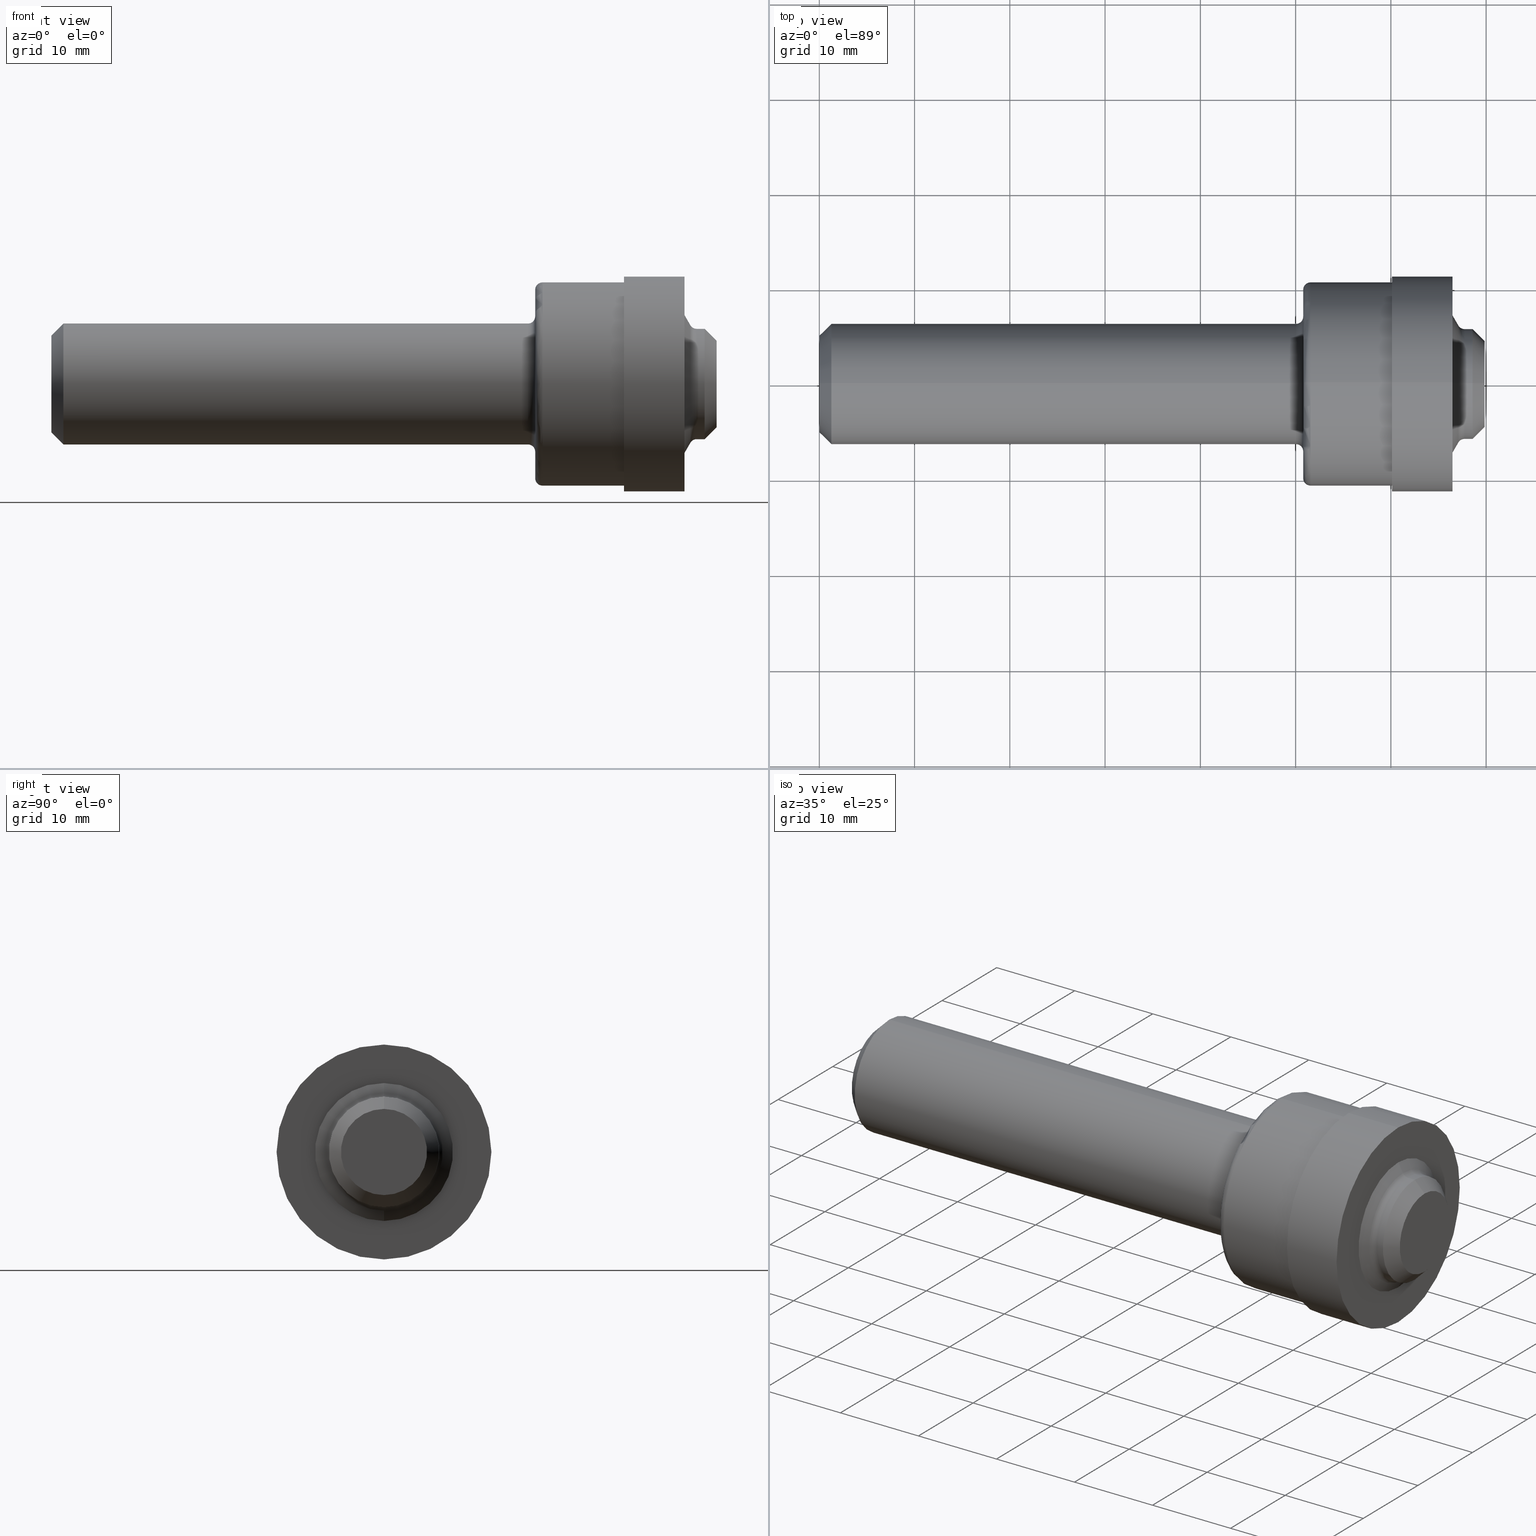
[diagram: canonical four-view strip — front | top / right | iso, engineering-drawing reading convention]
A machine part, canonical four-view strip (front | top / right | iso — engineering-drawing reading convention). The complete STEP part file that produces these views, byte-faithful:
ISO-10303-21;
HEADER;
FILE_DESCRIPTION (( 'STEP AP214' ),
    '1' );
FILE_NAME ('AS5202-04X.STEP',
    '2023-11-10T18:00:17',
    ( '' ),
    ( '' ),
    'SwSTEP 2.0',
    'SolidWorks 2022',
    '' );
FILE_SCHEMA (( 'AUTOMOTIVE_DESIGN' ));
ENDSEC;

DATA;
#1 = CARTESIAN_POINT ( 'NONE',  ( 2.000000000000000000, 3.427174067413867695E-17, -0.2798499999999999877 ) ) ;
#2 = FACE_OUTER_BOUND ( 'NONE', #418, .T. ) ;
#3 = CARTESIAN_POINT ( 'NONE',  ( 2.750000000000000000, 0.000000000000000000, 0.000000000000000000 ) ) ;
#4 = PRODUCT_RELATED_PRODUCT_CATEGORY ( 'part', '', ( #489 ) ) ;
#5 = CARTESIAN_POINT ( 'NONE',  ( 2.666594388123388448, 0.000000000000000000, 0.000000000000000000 ) ) ;
#6 = DIRECTION ( 'NONE',  ( 0.000000000000000000, 0.000000000000000000, 1.000000000000000000 ) ) ;
#7 = ORIENTED_EDGE ( 'NONE', *, *, #551, .F. ) ;
#8 = CONICAL_SURFACE ( 'NONE', #91, 0.1781000000000000638, 0.7853981633974500554 ) ;
#9 = DIRECTION ( 'NONE',  ( 0.000000000000000000, 0.000000000000000000, 1.000000000000000000 ) ) ;
#10 = EDGE_CURVE ( 'NONE', #492, #130, #298, .T. ) ;
#11 =( NAMED_UNIT ( * ) SI_UNIT ( $, .STERADIAN. ) SOLID_ANGLE_UNIT ( ) );
#12 = CARTESIAN_POINT ( 'NONE',  ( 2.616999999999999993, 0.4440000000000000058, 0.000000000000000000 ) ) ;
#13 = DIRECTION ( 'NONE',  ( 1.000000000000000000, 0.000000000000000000, 0.000000000000000000 ) ) ;
#14 = VERTEX_POINT ( 'NONE', #524 ) ;
#15 = DIRECTION ( 'NONE',  ( -0.000000000000000000, 0.000000000000000000, 1.000000000000000000 ) ) ;
#16 = ORIENTED_EDGE ( 'NONE', *, *, #266, .T. ) ;
#17 = PRESENTATION_LAYER_ASSIGNMENT (  '', '', ( #132 ) ) ;
#18 = CARTESIAN_POINT ( 'NONE',  ( 2.666594388123388448, 0.000000000000000000, 0.2280999999999997474 ) ) ;
#19 = VERTEX_POINT ( 'NONE', #40 ) ;
#20 = ADVANCED_FACE ( 'NONE', ( #247 ), #47, .T. ) ;
#21 = CARTESIAN_POINT ( 'NONE',  ( 0.05000000000000000278, 0.000000000000000000, 0.000000000000000000 ) ) ;
#22 = ORIENTED_EDGE ( 'NONE', *, *, #404, .F. ) ;
#23 = DIRECTION ( 'NONE',  ( -1.000000000000000000, -0.000000000000000000, -0.000000000000000000 ) ) ;
#24 = ORIENTED_EDGE ( 'NONE', *, *, #185, .F. ) ;
#25 = ORIENTED_EDGE ( 'NONE', *, *, #157, .F. ) ;
#26 = ORIENTED_EDGE ( 'NONE', *, *, #580, .F. ) ;
#27 = AXIS2_PLACEMENT_3D ( 'NONE', #533, #148, #362 ) ;
#28 = EDGE_LOOP ( 'NONE', ( #26, #571, #227, #308 ) ) ;
#29 = EDGE_CURVE ( 'NONE', #380, #313, #175, .T. ) ;
#30 = CARTESIAN_POINT ( 'NONE',  ( 0.000000000000000000, 0.000000000000000000, -0.1998500000000001942 ) ) ;
#31 = ORIENTED_EDGE ( 'NONE', *, *, #246, .T. ) ;
#32 = EDGE_CURVE ( 'NONE', #14, #497, #692, .T. ) ;
#33 = DIRECTION ( 'NONE',  ( -1.000000000000000000, -0.000000000000000000, -0.000000000000000000 ) ) ;
#34 = ORIENTED_EDGE ( 'NONE', *, *, #370, .T. ) ;
#35 = APPLICATION_PROTOCOL_DEFINITION ( 'draft international standard', 'automotive_design', 1998, #650 ) ;
#36 = ADVANCED_FACE ( 'NONE', ( #2 ), #300, .T. ) ;
#37 = CIRCLE ( 'NONE', #216, 0.2849999999999999756 ) ;
#38 = ORIENTED_EDGE ( 'NONE', *, *, #202, .T. ) ;
#39 = DIRECTION ( 'NONE',  ( -1.000000000000000000, -0.000000000000000000, -0.000000000000000000 ) ) ;
#40 = CARTESIAN_POINT ( 'NONE',  ( 2.616999999999999993, 3.490243377569956308E-17, -0.2849999999999999756 ) ) ;
#41 = DIRECTION ( 'NONE',  ( -0.000000000000000000, 1.000000000000000000, 1.224646799147353207E-16 ) ) ;
#42 = DIRECTION ( 'NONE',  ( 0.000000000000000000, 0.000000000000000000, 1.000000000000000000 ) ) ;
#43 = DIRECTION ( 'NONE',  ( -1.000000000000000000, -0.000000000000000000, -0.000000000000000000 ) ) ;
#44 = EDGE_LOOP ( 'NONE', ( #278, #558 ) ) ;
#45 = CARTESIAN_POINT ( 'NONE',  ( 2.616999999999999993, 5.437431788214248526E-17, -0.4440000000000000058 ) ) ;
#46 = CARTESIAN_POINT ( 'NONE',  ( 2.029999999999999805, 0.000000000000000000, 0.000000000000000000 ) ) ;
#47 = CONICAL_SURFACE ( 'NONE', #518, 0.2425999999999998713, 1.047197551196612064 ) ;
#48 = VECTOR ( 'NONE', #224, 39.37007874015748143 ) ;
#49 = LINE ( 'NONE', #586, #577 ) ;
#50 = DIRECTION ( 'NONE',  ( 0.000000000000000000, 0.000000000000000000, 1.000000000000000000 ) ) ;
#51 = DIRECTION ( 'NONE',  ( 0.000000000000000000, 0.000000000000000000, -1.000000000000000000 ) ) ;
#52 = DIRECTION ( 'NONE',  ( 0.000000000000000000, 0.000000000000000000, 1.000000000000000000 ) ) ;
#53 = CARTESIAN_POINT ( 'NONE',  ( 2.700000000000000178, 0.000000000000000000, 0.000000000000000000 ) ) ;
#54 = DIRECTION ( 'NONE',  ( 0.000000000000000000, 0.000000000000000000, 1.000000000000000000 ) ) ;
#55 = ADVANCED_FACE ( 'NONE', ( #258 ), #90, .F. ) ;
#56 = FACE_BOUND ( 'NONE', #660, .T. ) ;
#57 = AXIS2_PLACEMENT_3D ( 'NONE', #565, #459, #232 ) ;
#58 = DIRECTION ( 'NONE',  ( -1.000000000000000000, -0.000000000000000000, -0.000000000000000000 ) ) ;
#59 = ADVANCED_BREP_SHAPE_REPRESENTATION ( 'AS5202-04X', ( #64, #542 ), #168 ) ;
#60 = DIRECTION ( 'NONE',  ( 0.000000000000000000, 0.000000000000000000, -1.000000000000000000 ) ) ;
#61 = LINE ( 'NONE', #271, #402 ) ;
#62 = ADVANCED_FACE ( 'NONE', ( #645 ), #211, .T. ) ;
#63 = DIRECTION ( 'NONE',  ( -1.000000000000000000, -0.000000000000000000, -0.000000000000000000 ) ) ;
#64 = MANIFOLD_SOLID_BREP ( 'Body', #610 ) ;
#65 = DIRECTION ( 'NONE',  ( 0.000000000000000000, 0.000000000000000000, 1.000000000000000000 ) ) ;
#66 = ORIENTED_EDGE ( 'NONE', *, *, #172, .T. ) ;
#67 = AXIS2_PLACEMENT_3D ( 'NONE', #510, #681, #669 ) ;
#68 = PLANE ( 'NONE',  #448 ) ;
#69 = CIRCLE ( 'NONE', #549, 0.2425999999999998713 ) ;
#70 = ORIENTED_EDGE ( 'NONE', *, *, #294, .T. ) ;
#71 = CARTESIAN_POINT ( 'NONE',  ( 2.750000000000000000, 0.000000000000000000, 0.1781000000000000638 ) ) ;
#72 = ORIENTED_EDGE ( 'NONE', *, *, #399, .F. ) ;
#73 = CARTESIAN_POINT ( 'NONE',  ( 1.969999999999999973, 0.000000000000000000, 0.000000000000000000 ) ) ;
#74 = DIRECTION ( 'NONE',  ( -1.000000000000000000, -0.000000000000000000, -0.000000000000000000 ) ) ;
#75 = EDGE_LOOP ( 'NONE', ( #206, #144, #507, #25 ) ) ;
#76 = ORIENTED_EDGE ( 'NONE', *, *, #212, .T. ) ;
#77 = ADVANCED_FACE ( 'NONE', ( #105 ), #104, .F. ) ;
#78 = CARTESIAN_POINT ( 'NONE',  ( 2.616999999999999993, 0.000000000000000000, 0.4440000000000000058 ) ) ;
#79 = ORIENTED_EDGE ( 'NONE', *, *, #269, .F. ) ;
#80 =( GEOMETRIC_REPRESENTATION_CONTEXT ( 3 ) GLOBAL_UNCERTAINTY_ASSIGNED_CONTEXT ( ( #434 ) ) GLOBAL_UNIT_ASSIGNED_CONTEXT ( ( #431, #150, #11 ) ) REPRESENTATION_CONTEXT ( 'NONE', 'WORKASPACE' ) );
#81 = AXIS2_PLACEMENT_3D ( 'NONE', #655, #331, #54 ) ;
#82 = ORIENTED_EDGE ( 'NONE', *, *, #654, .T. ) ;
#83 = DIMENSIONAL_EXPONENTS ( 1.000000000000000000, 0.000000000000000000, 0.000000000000000000, 0.000000000000000000, 0.000000000000000000, 0.000000000000000000, 0.000000000000000000 ) ;
#84 = ORIENTED_EDGE ( 'NONE', *, *, #554, .F. ) ;
#85 =( CONVERSION_BASED_UNIT ( 'INCH', #523 ) LENGTH_UNIT ( ) NAMED_UNIT ( #242 ) );
#86 = EDGE_CURVE ( 'NONE', #585, #352, #439, .T. ) ;
#87 = DIRECTION ( 'NONE',  ( -1.000000000000000000, -0.000000000000000000, -0.000000000000000000 ) ) ;
#88 = ORIENTED_EDGE ( 'NONE', *, *, #370, .F. ) ;
#89 = SHAPE_DEFINITION_REPRESENTATION ( #267, #59 ) ;
#90 = TOROIDAL_SURFACE ( 'NONE', #316, 0.2570999999999999952, 0.02900000000000022699 ) ;
#91 = AXIS2_PLACEMENT_3D ( 'NONE', #3, #572, #317 ) ;
#92 = CARTESIAN_POINT ( 'NONE',  ( 2.641479651413639385, 0.000000000000000000, 0.000000000000000000 ) ) ;
#93 = VECTOR ( 'NONE', #573, 39.37007874015748143 ) ;
#94 = DIRECTION ( 'NONE',  ( -1.000000000000000000, -0.000000000000000000, -0.000000000000000000 ) ) ;
#95 = CARTESIAN_POINT ( 'NONE',  ( 2.750000000000000000, 0.000000000000000000, 0.000000000000000000 ) ) ;
#96 =( NAMED_UNIT ( * ) PLANE_ANGLE_UNIT ( ) SI_UNIT ( $, .RADIAN. ) );
#97 = DIRECTION ( 'NONE',  ( 0.000000000000000000, 0.000000000000000000, 1.000000000000000000 ) ) ;
#98 = ORIENTED_EDGE ( 'NONE', *, *, #534, .F. ) ;
#99 = DIRECTION ( 'NONE',  ( 0.000000000000000000, -1.224646799147354933E-16, 1.000000000000000000 ) ) ;
#100 = CARTESIAN_POINT ( 'NONE',  ( 0.000000000000000000, 0.000000000000000000, 0.2498499999999999888 ) ) ;
#101 = ADVANCED_FACE ( 'NONE', ( #595, #56 ), #268, .F. ) ;
#102 = ORIENTED_EDGE ( 'NONE', *, *, #315, .T. ) ;
#103 = FACE_OUTER_BOUND ( 'NONE', #552, .T. ) ;
#104 = TOROIDAL_SURFACE ( 'NONE', #493, 0.2798499999999999877, 0.02999999999999997113 ) ;
#105 = FACE_OUTER_BOUND ( 'NONE', #633, .T. ) ;
#106 = TOROIDAL_SURFACE ( 'NONE', #495, 0.3899999999999999578, 0.02999999999999998848 ) ;
#107 = DIRECTION ( 'NONE',  ( -1.000000000000000000, -0.000000000000000000, -0.000000000000000000 ) ) ;
#108 =( LENGTH_UNIT ( ) NAMED_UNIT ( * ) SI_UNIT ( $, .METRE. ) );
#109 = ADVANCED_FACE ( 'NONE', ( #114 ), #356, .T. ) ;
#110 = DIRECTION ( 'NONE',  ( 0.000000000000000000, 0.000000000000000000, 1.000000000000000000 ) ) ;
#111 = LINE ( 'NONE', #371, #48 ) ;
#112 = CIRCLE ( 'NONE', #505, 0.4440000000000000058 ) ;
#113 = FACE_OUTER_BOUND ( 'NONE', #147, .T. ) ;
#114 = FACE_OUTER_BOUND ( 'NONE', #611, .T. ) ;
#115 = ORIENTED_EDGE ( 'NONE', *, *, #266, .F. ) ;
#116 = VECTOR ( 'NONE', #503, 39.37007874015748143 ) ;
#117 = CARTESIAN_POINT ( 'NONE',  ( 0.05000000000000000278, 0.000000000000000000, 0.000000000000000000 ) ) ;
#118 = ORIENTED_EDGE ( 'NONE', *, *, #512, .T. ) ;
#119 = DIRECTION ( 'NONE',  ( 0.000000000000000000, 0.000000000000000000, 1.000000000000000000 ) ) ;
#120 = CIRCLE ( 'NONE', #517, 0.4199999999999998734 ) ;
#121 = EDGE_LOOP ( 'NONE', ( #124, #475, #329, #343 ) ) ;
#122 = VECTOR ( 'NONE', #342, 39.37007874015748854 ) ;
#123 = AXIS2_PLACEMENT_3D ( 'NONE', #643, #419, #204 ) ;
#124 = ORIENTED_EDGE ( 'NONE', *, *, #185, .T. ) ;
#125 = ORIENTED_EDGE ( 'NONE', *, *, #10, .T. ) ;
#126 = DIRECTION ( 'NONE',  ( 0.000000000000000000, 0.000000000000000000, 1.000000000000000000 ) ) ;
#127 = ADVANCED_FACE ( 'NONE', ( #265 ), #166, .T. ) ;
#128 = CARTESIAN_POINT ( 'NONE',  ( 2.366999999999999993, 0.000000000000000000, 0.000000000000000000 ) ) ;
#129 =( NAMED_UNIT ( * ) PLANE_ANGLE_UNIT ( ) SI_UNIT ( $, .RADIAN. ) );
#130 = VERTEX_POINT ( 'NONE', #607 ) ;
#131 = CARTESIAN_POINT ( 'NONE',  ( 0.000000000000000000, 0.000000000000000000, 0.000000000000000000 ) ) ;
#132 = STYLED_ITEM ( 'NONE', ( #597 ), #64 ) ;
#133 = AXIS2_PLACEMENT_3D ( 'NONE', #327, #13, #60 ) ;
#134 = DIRECTION ( 'NONE',  ( 0.000000000000000000, -1.224646799147352221E-16, 1.000000000000000000 ) ) ;
#135 = EDGE_LOOP ( 'NONE', ( #511, #339 ) ) ;
#136 = APPLICATION_PROTOCOL_DEFINITION ( 'draft international standard', 'automotive_design', 1998, #213 ) ;
#137 = CARTESIAN_POINT ( 'NONE',  ( 0.000000000000000000, 3.059780027669661931E-17, -0.2498499999999999888 ) ) ;
#138 = VERTEX_POINT ( 'NONE', #598 ) ;
#139 = PLANE ( 'NONE',  #201 ) ;
#140 = ORIENTED_EDGE ( 'NONE', *, *, #420, .F. ) ;
#141 = CARTESIAN_POINT ( 'NONE',  ( 0.000000000000000000, 0.000000000000000000, 0.000000000000000000 ) ) ;
#142 = SURFACE_STYLE_USAGE ( .BOTH. , #567 ) ;
#143 = CARTESIAN_POINT ( 'NONE',  ( 2.616999999999999993, 0.000000000000000000, 0.2849999999999999756 ) ) ;
#144 = ORIENTED_EDGE ( 'NONE', *, *, #580, .T. ) ;
#145 = LINE ( 'NONE', #303, #93 ) ;
#146 = SURFACE_STYLE_FILL_AREA ( #208 ) ;
#147 = EDGE_LOOP ( 'NONE', ( #332, #390 ) ) ;
#148 = DIRECTION ( 'NONE',  ( -1.000000000000000000, -0.000000000000000000, -0.000000000000000000 ) ) ;
#149 = DIRECTION ( 'NONE',  ( -1.000000000000000000, -0.000000000000000000, -0.000000000000000000 ) ) ;
#150 =( NAMED_UNIT ( * ) PLANE_ANGLE_UNIT ( ) SI_UNIT ( $, .RADIAN. ) );
#151 = CARTESIAN_POINT ( 'NONE',  ( 2.616999999999999993, 0.000000000000000000, 0.000000000000000000 ) ) ;
#152 = ORIENTED_EDGE ( 'NONE', *, *, #29, .T. ) ;
#153 = EDGE_CURVE ( 'NONE', #604, #623, #322, .T. ) ;
#154 = CIRCLE ( 'NONE', #464, 0.4199999999999999845 ) ;
#155 = VECTOR ( 'NONE', #417, 39.37007874015748143 ) ;
#156 = CARTESIAN_POINT ( 'NONE',  ( 2.616999999999999993, 0.000000000000000000, 0.000000000000000000 ) ) ;
#157 = EDGE_CURVE ( 'NONE', #664, #609, #273, .T. ) ;
#158 = DIRECTION ( 'NONE',  ( -1.000000000000000000, -0.000000000000000000, -0.000000000000000000 ) ) ;
#159 = FACE_OUTER_BOUND ( 'NONE', #121, .T. ) ;
#160 = SURFACE_STYLE_USAGE ( .BOTH. , #435 ) ;
#161 = CARTESIAN_POINT ( 'NONE',  ( 2.641479651413639385, 2.970993134731476863E-17, -0.2425999999999998713 ) ) ;
#162 = CIRCLE ( 'NONE', #656, 0.4440000000000000058 ) ;
#163 = CARTESIAN_POINT ( 'NONE',  ( 2.000000000000000000, 0.000000000000000000, 0.3899999999999999578 ) ) ;
#164 = ORIENTED_EDGE ( 'NONE', *, *, #277, .T. ) ;
#165 = EDGE_CURVE ( 'NONE', #628, #581, #162, .T. ) ;
#166 = CYLINDRICAL_SURFACE ( 'NONE', #587, 0.4199999999999998734 ) ;
#167 = DIRECTION ( 'NONE',  ( 0.000000000000000000, -1.000000000000000000, 0.000000000000000000 ) ) ;
#168 =( GEOMETRIC_REPRESENTATION_CONTEXT ( 3 ) GLOBAL_UNCERTAINTY_ASSIGNED_CONTEXT ( ( #592 ) ) GLOBAL_UNIT_ASSIGNED_CONTEXT ( ( #171, #129, #283 ) ) REPRESENTATION_CONTEXT ( 'NONE', 'WORKASPACE' ) );
#169 = DIRECTION ( 'NONE',  ( 0.000000000000000000, 0.000000000000000000, -1.000000000000000000 ) ) ;
#170 = ORIENTED_EDGE ( 'NONE', *, *, #364, .T. ) ;
#171 =( CONVERSION_BASED_UNIT ( 'INCH', #563 ) LENGTH_UNIT ( ) NAMED_UNIT ( #83 ) );
#172 = EDGE_CURVE ( 'NONE', #182, #576, #346, .T. ) ;
#173 = VECTOR ( 'NONE', #149, 39.37007874015748143 ) ;
#174 = CARTESIAN_POINT ( 'NONE',  ( 0.000000000000000000, 0.000000000000000000, 0.4440000000000000058 ) ) ;
#175 = CIRCLE ( 'NONE', #252, 0.1781000000000000638 ) ;
#176 = ORIENTED_EDGE ( 'NONE', *, *, #684, .T. ) ;
#177 = CIRCLE ( 'NONE', #538, 0.02999999999999995379 ) ;
#178 = EDGE_CURVE ( 'NONE', #384, #514, #657, .T. ) ;
#179 = DIRECTION ( 'NONE',  ( 0.000000000000000000, 0.000000000000000000, -1.000000000000000000 ) ) ;
#180 = CARTESIAN_POINT ( 'NONE',  ( 1.969999999999999973, 3.243477047541764505E-17, -0.2498499999999999888 ) ) ;
#181 = ORIENTED_EDGE ( 'NONE', *, *, #528, .T. ) ;
#182 = VERTEX_POINT ( 'NONE', #163 ) ;
#183 = CARTESIAN_POINT ( 'NONE',  ( 0.000000000000000000, 0.000000000000000000, 0.000000000000000000 ) ) ;
#184 = CARTESIAN_POINT ( 'NONE',  ( 0.000000000000000000, 0.000000000000000000, 0.2280999999999998862 ) ) ;
#185 = EDGE_CURVE ( 'NONE', #352, #585, #375, .T. ) ;
#186 = AXIS2_PLACEMENT_3D ( 'NONE', #222, #458, #614 ) ;
#187 = DIRECTION ( 'NONE',  ( -1.000000000000000000, -0.000000000000000000, -0.000000000000000000 ) ) ;
#188 = ORIENTED_EDGE ( 'NONE', *, *, #86, .F. ) ;
#189 = AXIS2_PLACEMENT_3D ( 'NONE', #117, #662, #65 ) ;
#190 = CIRCLE ( 'NONE', #57, 0.3899999999999999578 ) ;
#191 = CIRCLE ( 'NONE', #67, 0.2498499999999999888 ) ;
#192 = ADVANCED_FACE ( 'NONE', ( #159 ), #539, .T. ) ;
#193 = LINE ( 'NONE', #456, #694 ) ;
#194 = EDGE_LOOP ( 'NONE', ( #79, #152, #196, #188 ) ) ;
#195 = CARTESIAN_POINT ( 'NONE',  ( 2.700000000000000178, 2.793419348855112890E-17, -0.2280999999999999972 ) ) ;
#196 = ORIENTED_EDGE ( 'NONE', *, *, #281, .T. ) ;
#197 = CARTESIAN_POINT ( 'NONE',  ( 2.029999999999999805, 0.000000000000000000, 0.4199999999999998734 ) ) ;
#198 = PRODUCT_CONTEXT ( 'NONE', #650, 'mechanical' ) ;
#199 = CARTESIAN_POINT ( 'NONE',  ( 2.000000000000000000, 0.000000000000000000, 0.000000000000000000 ) ) ;
#200 = ORIENTED_EDGE ( 'NONE', *, *, #433, .T. ) ;
#201 = AXIS2_PLACEMENT_3D ( 'NONE', #480, #363, #307 ) ;
#202 = EDGE_CURVE ( 'NONE', #138, #606, #575, .T. ) ;
#203 = AXIS2_PLACEMENT_3D ( 'NONE', #391, #561, #287 ) ;
#204 = DIRECTION ( 'NONE',  ( 0.000000000000000000, 0.000000000000000000, 1.000000000000000000 ) ) ;
#205 = FACE_OUTER_BOUND ( 'NONE', #194, .T. ) ;
#206 = ORIENTED_EDGE ( 'NONE', *, *, #541, .F. ) ;
#207 = DIRECTION ( 'NONE',  ( -1.000000000000000000, -0.000000000000000000, -0.000000000000000000 ) ) ;
#208 = FILL_AREA_STYLE ('',( #531 ) ) ;
#209 = CARTESIAN_POINT ( 'NONE',  ( 2.616999999999999993, 0.000000000000000000, 0.000000000000000000 ) ) ;
#210 = VECTOR ( 'NONE', #553, 39.37007874015748143 ) ;
#211 = CYLINDRICAL_SURFACE ( 'NONE', #239, 0.2498499999999999888 ) ;
#212 = EDGE_CURVE ( 'NONE', #664, #601, #111, .T. ) ;
#213 = APPLICATION_CONTEXT ( 'automotive_design' ) ;
#214 = DIRECTION ( 'NONE',  ( -1.000000000000000000, -0.000000000000000000, -0.000000000000000000 ) ) ;
#215 = CIRCLE ( 'NONE', #274, 0.02999999999999998848 ) ;
#216 = AXIS2_PLACEMENT_3D ( 'NONE', #209, #207, #423 ) ;
#217 = DIRECTION ( 'NONE',  ( 0.000000000000000000, 0.000000000000000000, 1.000000000000000000 ) ) ;
#218 = ORIENTED_EDGE ( 'NONE', *, *, #661, .T. ) ;
#219 = DIRECTION ( 'NONE',  ( 0.000000000000000000, 0.000000000000000000, 1.000000000000000000 ) ) ;
#220 = CARTESIAN_POINT ( 'NONE',  ( 0.000000000000000000, 0.000000000000000000, 0.4199999999999998734 ) ) ;
#221 = CARTESIAN_POINT ( 'NONE',  ( 2.366999999999999993, 0.000000000000000000, 0.000000000000000000 ) ) ;
#222 = CARTESIAN_POINT ( 'NONE',  ( 2.029999999999999805, 0.000000000000000000, 0.3899999999999999578 ) ) ;
#223 = ORIENTED_EDGE ( 'NONE', *, *, #630, .T. ) ;
#224 = DIRECTION ( 'NONE',  ( -0.4999999999999876210, 0.000000000000000000, 0.8660254037844458130 ) ) ;
#225 = EDGE_LOOP ( 'NONE', ( #66, #659 ) ) ;
#226 = DIRECTION ( 'NONE',  ( -1.000000000000000000, -0.000000000000000000, -0.000000000000000000 ) ) ;
#227 = ORIENTED_EDGE ( 'NONE', *, *, #157, .T. ) ;
#228 = DIRECTION ( 'NONE',  ( 0.000000000000000000, 0.000000000000000000, 1.000000000000000000 ) ) ;
#229 = EDGE_LOOP ( 'NONE', ( #544, #676 ) ) ;
#230 = CARTESIAN_POINT ( 'NONE',  ( 2.750000000000000000, 0.000000000000000000, 0.000000000000000000 ) ) ;
#231 = ORIENTED_EDGE ( 'NONE', *, *, #684, .F. ) ;
#232 = DIRECTION ( 'NONE',  ( 0.000000000000000000, 0.000000000000000000, 1.000000000000000000 ) ) ;
#233 = EDGE_LOOP ( 'NONE', ( #164, #176, #414, #115 ) ) ;
#234 = FACE_OUTER_BOUND ( 'NONE', #668, .T. ) ;
#235 = ORIENTED_EDGE ( 'NONE', *, *, #560, .T. ) ;
#236 = EDGE_CURVE ( 'NONE', #609, #504, #621, .T. ) ;
#237 = LINE ( 'NONE', #174, #591 ) ;
#238 = ORIENTED_EDGE ( 'NONE', *, *, #378, .F. ) ;
#239 = AXIS2_PLACEMENT_3D ( 'NONE', #636, #641, #425 ) ;
#240 = AXIS2_PLACEMENT_3D ( 'NONE', #555, #74, #285 ) ;
#241 = VECTOR ( 'NONE', #245, 39.37007874015748143 ) ;
#242 = DIMENSIONAL_EXPONENTS ( 1.000000000000000000, 0.000000000000000000, 0.000000000000000000, 0.000000000000000000, 0.000000000000000000, 0.000000000000000000, 0.000000000000000000 ) ;
#243 = LINE ( 'NONE', #351, #241 ) ;
#244 = ORIENTED_EDGE ( 'NONE', *, *, #315, .F. ) ;
#245 = DIRECTION ( 'NONE',  ( 0.7071067811865489050, 8.659560562354915602E-17, 0.7071067811865461294 ) ) ;
#246 = EDGE_CURVE ( 'NONE', #562, #19, #436, .T. ) ;
#247 = FACE_OUTER_BOUND ( 'NONE', #250, .T. ) ;
#248 = DIRECTION ( 'NONE',  ( 0.000000000000000000, 0.000000000000000000, 1.000000000000000000 ) ) ;
#249 = DIRECTION ( 'NONE',  ( 0.000000000000000000, 0.000000000000000000, 1.000000000000000000 ) ) ;
#250 = EDGE_LOOP ( 'NONE', ( #547, #695, #76, #388 ) ) ;
#251 = DIRECTION ( 'NONE',  ( 0.000000000000000000, 0.000000000000000000, 1.000000000000000000 ) ) ;
#252 = AXIS2_PLACEMENT_3D ( 'NONE', #291, #680, #689 ) ;
#253 = AXIS2_PLACEMENT_3D ( 'NONE', #318, #596, #603 ) ;
#254 = DIRECTION ( 'NONE',  ( -0.000000000000000000, 0.000000000000000000, 1.000000000000000000 ) ) ;
#255 = PRODUCT_DEFINITION_CONTEXT ( 'detailed design', #213, 'design' ) ;
#256 = ADVANCED_FACE ( 'NONE', ( #374, #113 ), #446, .F. ) ;
#257 = LINE ( 'NONE', #137, #155 ) ;
#258 = FACE_OUTER_BOUND ( 'NONE', #75, .T. ) ;
#259 = DIRECTION ( 'NONE',  ( 0.000000000000000000, 0.000000000000000000, 1.000000000000000000 ) ) ;
#260 = ORIENTED_EDGE ( 'NONE', *, *, #445, .T. ) ;
#261 = CARTESIAN_POINT ( 'NONE',  ( 1.969999999999999973, 0.000000000000000000, 0.000000000000000000 ) ) ;
#262 = DIRECTION ( 'NONE',  ( -1.000000000000000000, -0.000000000000000000, -0.000000000000000000 ) ) ;
#263 = AXIS2_PLACEMENT_3D ( 'NONE', #496, #441, #9 ) ;
#264 = AXIS2_PLACEMENT_3D ( 'NONE', #141, #214, #251 ) ;
#265 = FACE_OUTER_BOUND ( 'NONE', #556, .T. ) ;
#266 = EDGE_CURVE ( 'NONE', #606, #492, #490, .T. ) ;
#267 = PRODUCT_DEFINITION_SHAPE ( 'NONE', 'NONE',  #426 ) ;
#268 = PLANE ( 'NONE',  #462 ) ;
#269 = EDGE_CURVE ( 'NONE', #380, #585, #61, .T. ) ;
#270 = PRESENTATION_LAYER_ASSIGNMENT (  '', '', ( #309 ) ) ;
#271 = CARTESIAN_POINT ( 'NONE',  ( 2.750000000000000000, 2.181095949281437026E-17, -0.1781000000000000638 ) ) ;
#272 = CARTESIAN_POINT ( 'NONE',  ( 0.000000000000000000, 5.143516556418881942E-17, -0.4199999999999998734 ) ) ;
#273 = CIRCLE ( 'NONE', #677, 0.02900000000000022352 ) ;
#274 = AXIS2_PLACEMENT_3D ( 'NONE', #295, #675, #134 ) ;
#275 = AXIS2_PLACEMENT_3D ( 'NONE', #151, #39, #427 ) ;
#276 = DIRECTION ( 'NONE',  ( 0.000000000000000000, 0.000000000000000000, 1.000000000000000000 ) ) ;
#277 = EDGE_CURVE ( 'NONE', #606, #138, #154, .T. ) ;
#278 = ORIENTED_EDGE ( 'NONE', *, *, #430, .F. ) ;
#279 = DIRECTION ( 'NONE',  ( 0.000000000000000000, 0.000000000000000000, 1.000000000000000000 ) ) ;
#280 = EDGE_LOOP ( 'NONE', ( #401, #347, #34, #238 ) ) ;
#281 = EDGE_CURVE ( 'NONE', #313, #352, #463, .T. ) ;
#282 = DIRECTION ( 'NONE',  ( 0.000000000000000000, 0.000000000000000000, 1.000000000000000000 ) ) ;
#283 =( NAMED_UNIT ( * ) SI_UNIT ( $, .STERADIAN. ) SOLID_ANGLE_UNIT ( ) );
#284 = AXIS2_PLACEMENT_3D ( 'NONE', #344, #63, #279 ) ;
#285 = DIRECTION ( 'NONE',  ( 0.000000000000000000, 0.000000000000000000, 1.000000000000000000 ) ) ;
#286 = ORIENTED_EDGE ( 'NONE', *, *, #172, .F. ) ;
#287 = DIRECTION ( 'NONE',  ( 0.000000000000000000, 0.000000000000000000, 1.000000000000000000 ) ) ;
#288 = ORIENTED_EDGE ( 'NONE', *, *, #304, .F. ) ;
#289 = AXIS2_PLACEMENT_3D ( 'NONE', #376, #535, #217 ) ;
#290 = ORIENTED_EDGE ( 'NONE', *, *, #153, .T. ) ;
#291 = CARTESIAN_POINT ( 'NONE',  ( 2.750000000000000000, 0.000000000000000000, 0.000000000000000000 ) ) ;
#292 = CARTESIAN_POINT ( 'NONE',  ( 2.029999999999999805, 0.000000000000000000, 0.000000000000000000 ) ) ;
#293 = ORIENTED_EDGE ( 'NONE', *, *, #212, .F. ) ;
#294 = EDGE_CURVE ( 'NONE', #394, #345, #588, .T. ) ;
#295 = CARTESIAN_POINT ( 'NONE',  ( 1.969999999999999973, 3.427174067413867695E-17, -0.2798499999999999877 ) ) ;
#296 =( GEOMETRIC_REPRESENTATION_CONTEXT ( 3 ) GLOBAL_UNCERTAINTY_ASSIGNED_CONTEXT ( ( #639 ) ) GLOBAL_UNIT_ASSIGNED_CONTEXT ( ( #85, #96, #687 ) ) REPRESENTATION_CONTEXT ( 'NONE', 'WORKASPACE' ) );
#297 = ORIENTED_EDGE ( 'NONE', *, *, #325, .F. ) ;
#298 = CIRCLE ( 'NONE', #474, 0.4199999999999998734 ) ;
#299 = ORIENTED_EDGE ( 'NONE', *, *, #392, .T. ) ;
#300 = CONICAL_SURFACE ( 'NONE', #385, 0.2498499999999999888, 0.7853981633974463916 ) ;
#301 = VECTOR ( 'NONE', #540, 39.37007874015748143 ) ;
#302 = AXIS2_PLACEMENT_3D ( 'NONE', #95, #691, #52 ) ;
#303 = CARTESIAN_POINT ( 'NONE',  ( 0.000000000000000000, 5.437431788214248526E-17, -0.4440000000000000058 ) ) ;
#304 = EDGE_CURVE ( 'NONE', #576, #182, #190, .T. ) ;
#305 = DIRECTION ( 'NONE',  ( 0.000000000000000000, 0.000000000000000000, 1.000000000000000000 ) ) ;
#306 = CARTESIAN_POINT ( 'NONE',  ( 2.750000000000000000, 0.1781000000000000638, 0.000000000000000000 ) ) ;
#307 = DIRECTION ( 'NONE',  ( 0.000000000000000000, 0.000000000000000000, -1.000000000000000000 ) ) ;
#308 = ORIENTED_EDGE ( 'NONE', *, *, #236, .T. ) ;
#309 = STYLED_ITEM ( 'NONE', ( #515 ), #59 ) ;
#310 = FACE_OUTER_BOUND ( 'NONE', #546, .T. ) ;
#311 = DIRECTION ( 'NONE',  ( -0.000000000000000000, 1.000000000000000000, 1.224646799147353207E-16 ) ) ;
#312 = ADVANCED_FACE ( 'NONE', ( #234 ), #106, .T. ) ;
#313 = VERTEX_POINT ( 'NONE', #618 ) ;
#314 = CARTESIAN_POINT ( 'NONE',  ( 2.666594388123388448, 2.793419348855110424E-17, -0.2280999999999997474 ) ) ;
#315 = EDGE_CURVE ( 'NONE', #623, #604, #191, .T. ) ;
#316 = AXIS2_PLACEMENT_3D ( 'NONE', #5, #421, #110 ) ;
#317 = DIRECTION ( 'NONE',  ( 0.000000000000000000, 0.000000000000000000, 1.000000000000000000 ) ) ;
#318 = CARTESIAN_POINT ( 'NONE',  ( 2.000000000000000000, 0.000000000000000000, 0.000000000000000000 ) ) ;
#319 = MECHANICAL_DESIGN_GEOMETRIC_PRESENTATION_REPRESENTATION (  '', ( #309 ), #296 ) ;
#320 = CARTESIAN_POINT ( 'NONE',  ( 0.05000000000000000278, 0.000000000000000000, 0.000000000000000000 ) ) ;
#321 = DIRECTION ( 'NONE',  ( -1.000000000000000000, -0.000000000000000000, -0.000000000000000000 ) ) ;
#322 = CIRCLE ( 'NONE', #189, 0.2498499999999999888 ) ;
#323 = CONICAL_SURFACE ( 'NONE', #27, 0.2425999999999998713, 1.047197551196612064 ) ;
#324 = DIRECTION ( 'NONE',  ( 0.000000000000000000, 0.000000000000000000, 1.000000000000000000 ) ) ;
#325 = EDGE_CURVE ( 'NONE', #585, #504, #193, .T. ) ;
#326 = CARTESIAN_POINT ( 'NONE',  ( 2.366999999999999993, 0.000000000000000000, 0.000000000000000000 ) ) ;
#327 = CARTESIAN_POINT ( 'NONE',  ( 2.366999999999999993, 0.4199999999999999845, 0.000000000000000000 ) ) ;
#328 = CARTESIAN_POINT ( 'NONE',  ( 1.969999999999999973, 0.000000000000000000, 0.2798499999999999877 ) ) ;
#329 = ORIENTED_EDGE ( 'NONE', *, *, #236, .F. ) ;
#330 = ADVANCED_FACE ( 'NONE', ( #405 ), #451, .T. ) ;
#331 = DIRECTION ( 'NONE',  ( -1.000000000000000000, -0.000000000000000000, -0.000000000000000000 ) ) ;
#332 = ORIENTED_EDGE ( 'NONE', *, *, #165, .T. ) ;
#333 = ADVANCED_FACE ( 'NONE', ( #452 ), #568, .T. ) ;
#334 = CONICAL_SURFACE ( 'NONE', #302, 0.1781000000000000638, 0.7853981633974500554 ) ;
#335 = DIRECTION ( 'NONE',  ( -1.000000000000000000, -0.000000000000000000, -0.000000000000000000 ) ) ;
#336 = VERTEX_POINT ( 'NONE', #78 ) ;
#337 = DIRECTION ( 'NONE',  ( 1.000000000000000000, 0.000000000000000000, 0.000000000000000000 ) ) ;
#338 = FACE_OUTER_BOUND ( 'NONE', #361, .T. ) ;
#339 = ORIENTED_EDGE ( 'NONE', *, *, #661, .F. ) ;
#340 = CARTESIAN_POINT ( 'NONE',  ( 0.05000000000000000278, 0.000000000000000000, 0.2498499999999999888 ) ) ;
#341 = COLOUR_RGB ( '',0.7529411764705882248, 0.7529411764705882248, 0.7529411764705882248 ) ;
#342 = DIRECTION ( 'NONE',  ( -0.7071067811865462405, 0.000000000000000000, 0.7071067811865486830 ) ) ;
#343 = ORIENTED_EDGE ( 'NONE', *, *, #654, .F. ) ;
#344 = CARTESIAN_POINT ( 'NONE',  ( 2.000000000000000000, 0.000000000000000000, 0.000000000000000000 ) ) ;
#345 = VERTEX_POINT ( 'NONE', #30 ) ;
#346 = CIRCLE ( 'NONE', #253, 0.3899999999999999578 ) ;
#347 = ORIENTED_EDGE ( 'NONE', *, *, #479, .T. ) ;
#348 = AXIS2_PLACEMENT_3D ( 'NONE', #536, #58, #600 ) ;
#349 = CYLINDRICAL_SURFACE ( 'NONE', #240, 0.2280999999999998862 ) ;
#350 = EDGE_LOOP ( 'NONE', ( #181, #31, #453, #293 ) ) ;
#351 = CARTESIAN_POINT ( 'NONE',  ( 0.05000000000000000278, 3.059780027669661931E-17, 0.2498499999999999888 ) ) ;
#352 = VERTEX_POINT ( 'NONE', #499 ) ;
#353 = FACE_OUTER_BOUND ( 'NONE', #465, .T. ) ;
#354 = AXIS2_PLACEMENT_3D ( 'NONE', #467, #311, #530 ) ;
#355 = ORIENTED_EDGE ( 'NONE', *, *, #627, .T. ) ;
#356 = CONICAL_SURFACE ( 'NONE', #646, 0.2498499999999999888, 0.7853981633974463916 ) ;
#357 = DIRECTION ( 'NONE',  ( 0.000000000000000000, 0.000000000000000000, 1.000000000000000000 ) ) ;
#358 = CYLINDRICAL_SURFACE ( 'NONE', #608, 0.2498499999999999888 ) ;
#359 = EDGE_LOOP ( 'NONE', ( #407, #444, #529, #615 ) ) ;
#360 = DIRECTION ( 'NONE',  ( -1.000000000000000000, -0.000000000000000000, -0.000000000000000000 ) ) ;
#361 = EDGE_LOOP ( 'NONE', ( #297, #685, #82, #140 ) ) ;
#362 = DIRECTION ( 'NONE',  ( 0.000000000000000000, 0.000000000000000000, 1.000000000000000000 ) ) ;
#363 = DIRECTION ( 'NONE',  ( 1.000000000000000000, 0.000000000000000000, 0.000000000000000000 ) ) ;
#364 = EDGE_CURVE ( 'NONE', #384, #497, #215, .T. ) ;
#365 = FACE_OUTER_BOUND ( 'NONE', #28, .T. ) ;
#366 = AXIS2_PLACEMENT_3D ( 'NONE', #92, #481, #50 ) ;
#367 = LENGTH_MEASURE_WITH_UNIT ( LENGTH_MEASURE( 0.02539999999999999897 ), #108 );
#368 = FACE_OUTER_BOUND ( 'NONE', #350, .T. ) ;
#369 = DIRECTION ( 'NONE',  ( 0.000000000000000000, 0.000000000000000000, 1.000000000000000000 ) ) ;
#370 = EDGE_CURVE ( 'NONE', #336, #628, #237, .T. ) ;
#371 = CARTESIAN_POINT ( 'NONE',  ( 2.641479651413639385, 0.000000000000000000, 0.2425999999999998713 ) ) ;
#372 = CIRCLE ( 'NONE', #672, 0.02999999999999998848 ) ;
#373 = ADVANCED_FACE ( 'NONE', ( #338 ), #349, .T. ) ;
#374 = FACE_BOUND ( 'NONE', #229, .T. ) ;
#375 = CIRCLE ( 'NONE', #81, 0.2280999999999999972 ) ;
#376 = CARTESIAN_POINT ( 'NONE',  ( 0.000000000000000000, 0.000000000000000000, 0.000000000000000000 ) ) ;
#377 = ORIENTED_EDGE ( 'NONE', *, *, #674, .T. ) ;
#378 = EDGE_CURVE ( 'NONE', #581, #628, #564, .T. ) ;
#379 = DIRECTION ( 'NONE',  ( 0.000000000000000000, -1.000000000000000000, 0.000000000000000000 ) ) ;
#380 = VERTEX_POINT ( 'NONE', #667 ) ;
#381 = FACE_OUTER_BOUND ( 'NONE', #225, .T. ) ;
#382 = ORIENTED_EDGE ( 'NONE', *, *, #269, .T. ) ;
#383 = DIRECTION ( 'NONE',  ( -1.000000000000000000, -0.000000000000000000, -0.000000000000000000 ) ) ;
#384 = VERTEX_POINT ( 'NONE', #180 ) ;
#385 = AXIS2_PLACEMENT_3D ( 'NONE', #320, #593, #51 ) ;
#386 = AXIS2_PLACEMENT_3D ( 'NONE', #306, #525, #254 ) ;
#387 = DIRECTION ( 'NONE',  ( -1.000000000000000000, -0.000000000000000000, -0.000000000000000000 ) ) ;
#388 = ORIENTED_EDGE ( 'NONE', *, *, #433, .F. ) ;
#389 = LINE ( 'NONE', #184, #210 ) ;
#390 = ORIENTED_EDGE ( 'NONE', *, *, #378, .T. ) ;
#391 = CARTESIAN_POINT ( 'NONE',  ( 2.616999999999999993, 0.000000000000000000, 0.000000000000000000 ) ) ;
#392 = EDGE_CURVE ( 'NONE', #601, #19, #519, .T. ) ;
#393 = EDGE_LOOP ( 'NONE', ( #670, #118, #569, #88 ) ) ;
#394 = VERTEX_POINT ( 'NONE', #693 ) ;
#395 = ADVANCED_FACE ( 'NONE', ( #205 ), #8, .T. ) ;
#396 = DIRECTION ( 'NONE',  ( 0.000000000000000000, 0.000000000000000000, 1.000000000000000000 ) ) ;
#397 = ORIENTED_EDGE ( 'NONE', *, *, #551, .T. ) ;
#398 = LINE ( 'NONE', #272, #116 ) ;
#399 = EDGE_CURVE ( 'NONE', #345, #394, #612, .T. ) ;
#400 = DIRECTION ( 'NONE',  ( -1.000000000000000000, -0.000000000000000000, -0.000000000000000000 ) ) ;
#401 = ORIENTED_EDGE ( 'NONE', *, *, #512, .F. ) ;
#402 = VECTOR ( 'NONE', #491, 39.37007874015748854 ) ;
#403 =( LENGTH_UNIT ( ) NAMED_UNIT ( * ) SI_UNIT ( $, .METRE. ) );
#404 = EDGE_CURVE ( 'NONE', #130, #576, #177, .T. ) ;
#405 = FACE_OUTER_BOUND ( 'NONE', #673, .T. ) ;
#406 = ADVANCED_FACE ( 'NONE', ( #368 ), #323, .T. ) ;
#407 = ORIENTED_EDGE ( 'NONE', *, *, #364, .F. ) ;
#408 = SURFACE_STYLE_FILL_AREA ( #413 ) ;
#409 = FACE_OUTER_BOUND ( 'NONE', #682, .T. ) ;
#410 = AXIS2_PLACEMENT_3D ( 'NONE', #230, #506, #443 ) ;
#411 = ORIENTED_EDGE ( 'NONE', *, *, #445, .F. ) ;
#412 = CYLINDRICAL_SURFACE ( 'NONE', #466, 0.4199999999999998734 ) ;
#413 = FILL_AREA_STYLE ('',( #626 ) ) ;
#414 = ORIENTED_EDGE ( 'NONE', *, *, #10, .F. ) ;
#415 = FACE_OUTER_BOUND ( 'NONE', #233, .T. ) ;
#416 = AXIS2_PLACEMENT_3D ( 'NONE', #589, #360, #248 ) ;
#417 = DIRECTION ( 'NONE',  ( -1.000000000000000000, -0.000000000000000000, -0.000000000000000000 ) ) ;
#418 = EDGE_LOOP ( 'NONE', ( #637, #397, #102, #411 ) ) ;
#419 = DIRECTION ( 'NONE',  ( -1.000000000000000000, -0.000000000000000000, -0.000000000000000000 ) ) ;
#420 = EDGE_CURVE ( 'NONE', #504, #609, #632, .T. ) ;
#421 = DIRECTION ( 'NONE',  ( -1.000000000000000000, -0.000000000000000000, -0.000000000000000000 ) ) ;
#422 = AXIS2_PLACEMENT_3D ( 'NONE', #73, #557, #126 ) ;
#423 = DIRECTION ( 'NONE',  ( 0.000000000000000000, 0.000000000000000000, 1.000000000000000000 ) ) ;
#424 = ORIENTED_EDGE ( 'NONE', *, *, #399, .T. ) ;
#425 = DIRECTION ( 'NONE',  ( 0.000000000000000000, 0.000000000000000000, 1.000000000000000000 ) ) ;
#426 = PRODUCT_DEFINITION ( 'UNKNOWN', '', #584, #255 ) ;
#427 = DIRECTION ( 'NONE',  ( 0.000000000000000000, 0.000000000000000000, 1.000000000000000000 ) ) ;
#428 = VECTOR ( 'NONE', #658, 39.37007874015748143 ) ;
#429 = CIRCLE ( 'NONE', #275, 0.4440000000000000058 ) ;
#430 = EDGE_CURVE ( 'NONE', #336, #442, #112, .T. ) ;
#431 =( CONVERSION_BASED_UNIT ( 'INCH', #367 ) LENGTH_UNIT ( ) NAMED_UNIT ( #559 ) );
#432 = CARTESIAN_POINT ( 'NONE',  ( 2.666594388123388448, 0.000000000000000000, 0.2570999999999999952 ) ) ;
#433 = EDGE_CURVE ( 'NONE', #19, #601, #37, .T. ) ;
#434 = UNCERTAINTY_MEASURE_WITH_UNIT (LENGTH_MEASURE( 1.000000000000000082E-05 ), #431, 'distance_accuracy_value', 'NONE');
#435 = SURFACE_SIDE_STYLE ('',( #146 ) ) ;
#436 = LINE ( 'NONE', #161, #301 ) ;
#437 = CIRCLE ( 'NONE', #410, 0.1781000000000000638 ) ;
#438 = DIRECTION ( 'NONE',  ( -1.000000000000000000, 0.000000000000000000, -0.000000000000000000 ) ) ;
#439 = CIRCLE ( 'NONE', #476, 0.2280999999999999972 ) ;
#440 = ADVANCED_FACE ( 'NONE', ( #310 ), #334, .T. ) ;
#441 = DIRECTION ( 'NONE',  ( -1.000000000000000000, -0.000000000000000000, -0.000000000000000000 ) ) ;
#442 = VERTEX_POINT ( 'NONE', #45 ) ;
#443 = DIRECTION ( 'NONE',  ( 0.000000000000000000, 0.000000000000000000, 1.000000000000000000 ) ) ;
#444 = ORIENTED_EDGE ( 'NONE', *, *, #674, .F. ) ;
#445 = EDGE_CURVE ( 'NONE', #345, #604, #49, .T. ) ;
#446 = PLANE ( 'NONE',  #133 ) ;
#447 = ORIENTED_EDGE ( 'NONE', *, *, #153, .F. ) ;
#448 = AXIS2_PLACEMENT_3D ( 'NONE', #616, #337, #179 ) ;
#449 = DIRECTION ( 'NONE',  ( 0.000000000000000000, 0.000000000000000000, 1.000000000000000000 ) ) ;
#450 = ORIENTED_EDGE ( 'NONE', *, *, #404, .T. ) ;
#451 = TOROIDAL_SURFACE ( 'NONE', #548, 0.3899999999999999578, 0.02999999999999998848 ) ;
#452 = FACE_OUTER_BOUND ( 'NONE', #393, .T. ) ;
#453 = ORIENTED_EDGE ( 'NONE', *, *, #392, .F. ) ;
#454 = ADVANCED_FACE ( 'NONE', ( #415 ), #412, .T. ) ;
#455 =( LENGTH_UNIT ( ) NAMED_UNIT ( * ) SI_UNIT ( $, .METRE. ) );
#456 = CARTESIAN_POINT ( 'NONE',  ( 0.000000000000000000, 2.793419348855111041E-17, -0.2280999999999998862 ) ) ;
#457 = ORIENTED_EDGE ( 'NONE', *, *, #560, .F. ) ;
#458 = DIRECTION ( 'NONE',  ( 0.000000000000000000, -1.000000000000000000, 0.000000000000000000 ) ) ;
#459 = DIRECTION ( 'NONE',  ( -1.000000000000000000, -0.000000000000000000, -0.000000000000000000 ) ) ;
#460 = ORIENTED_EDGE ( 'NONE', *, *, #29, .F. ) ;
#461 = ADVANCED_FACE ( 'NONE', ( #629 ), #594, .T. ) ;
#462 = AXIS2_PLACEMENT_3D ( 'NONE', #12, #438, #15 ) ;
#463 = LINE ( 'NONE', #71, #122 ) ;
#464 = AXIS2_PLACEMENT_3D ( 'NONE', #221, #400, #622 ) ;
#465 = EDGE_LOOP ( 'NONE', ( #377, #502, #244, #84 ) ) ;
#466 = AXIS2_PLACEMENT_3D ( 'NONE', #522, #482, #6 ) ;
#467 = CARTESIAN_POINT ( 'NONE',  ( 2.666594388123388448, 3.148566920607844533E-17, -0.2570999999999999952 ) ) ;
#468 = CARTESIAN_POINT ( 'NONE',  ( 2.029999999999999805, 0.000000000000000000, 0.000000000000000000 ) ) ;
#469 = FACE_OUTER_BOUND ( 'NONE', #359, .T. ) ;
#470 = CARTESIAN_POINT ( 'NONE',  ( 2.641479651413639385, 2.970993134731479944E-17, -0.2426000000000000656 ) ) ;
#471 = DIRECTION ( 'NONE',  ( 0.000000000000000000, 0.000000000000000000, 1.000000000000000000 ) ) ;
#472 = CARTESIAN_POINT ( 'NONE',  ( 2.641479651413639385, 0.000000000000000000, 0.000000000000000000 ) ) ;
#473 = DIRECTION ( 'NONE',  ( 1.000000000000000000, 0.000000000000000000, 0.000000000000000000 ) ) ;
#474 = AXIS2_PLACEMENT_3D ( 'NONE', #468, #94, #305 ) ;
#475 = ORIENTED_EDGE ( 'NONE', *, *, #325, .T. ) ;
#476 = AXIS2_PLACEMENT_3D ( 'NONE', #53, #158, #369 ) ;
#477 = DIRECTION ( 'NONE',  ( 0.000000000000000000, 0.000000000000000000, 1.000000000000000000 ) ) ;
#478 = AXIS2_PLACEMENT_3D ( 'NONE', #550, #23, #282 ) ;
#479 = EDGE_CURVE ( 'NONE', #442, #336, #429, .T. ) ;
#480 = CARTESIAN_POINT ( 'NONE',  ( 0.000000000000000000, 0.000000000000000000, 0.000000000000000000 ) ) ;
#481 = DIRECTION ( 'NONE',  ( -1.000000000000000000, -0.000000000000000000, -0.000000000000000000 ) ) ;
#482 = DIRECTION ( 'NONE',  ( -1.000000000000000000, -0.000000000000000000, -0.000000000000000000 ) ) ;
#483 = DIRECTION ( 'NONE',  ( 0.000000000000000000, 0.000000000000000000, 1.000000000000000000 ) ) ;
#484 = ADVANCED_FACE ( 'NONE', ( #469 ), #521, .F. ) ;
#485 = DIRECTION ( 'NONE',  ( 1.000000000000000000, 0.000000000000000000, 0.000000000000000000 ) ) ;
#486 = AXIS2_PLACEMENT_3D ( 'NONE', #638, #532, #259 ) ;
#487 = CIRCLE ( 'NONE', #366, 0.2425999999999998713 ) ;
#488 = CARTESIAN_POINT ( 'NONE',  ( 0.000000000000000000, 0.000000000000000000, 0.000000000000000000 ) ) ;
#489 = PRODUCT ( 'AS5202-04X', 'AS5202-04X', '', ( #198 ) ) ;
#490 = LINE ( 'NONE', #220, #428 ) ;
#491 = DIRECTION ( 'NONE',  ( -0.7071067811865462405, 8.659560562354947649E-17, -0.7071067811865486830 ) ) ;
#492 = VERTEX_POINT ( 'NONE', #197 ) ;
#493 = AXIS2_PLACEMENT_3D ( 'NONE', #261, #651, #483 ) ;
#494 = ADVANCED_FACE ( 'NONE', ( #103 ), #578, .F. ) ;
#495 = AXIS2_PLACEMENT_3D ( 'NONE', #292, #226, #119 ) ;
#496 = CARTESIAN_POINT ( 'NONE',  ( 1.969999999999999973, 0.000000000000000000, 0.000000000000000000 ) ) ;
#497 = VERTEX_POINT ( 'NONE', #1 ) ;
#498 = CARTESIAN_POINT ( 'NONE',  ( 2.641479651413639385, 0.000000000000000000, 0.2426000000000000656 ) ) ;
#499 = CARTESIAN_POINT ( 'NONE',  ( 2.700000000000000178, 0.000000000000000000, 0.2280999999999999972 ) ) ;
#500 = ORIENTED_EDGE ( 'NONE', *, *, #627, .F. ) ;
#501 = DIRECTION ( 'NONE',  ( -1.000000000000000000, -0.000000000000000000, -0.000000000000000000 ) ) ;
#502 = ORIENTED_EDGE ( 'NONE', *, *, #534, .T. ) ;
#503 = DIRECTION ( 'NONE',  ( -1.000000000000000000, -0.000000000000000000, -0.000000000000000000 ) ) ;
#504 = VERTEX_POINT ( 'NONE', #314 ) ;
#505 = AXIS2_PLACEMENT_3D ( 'NONE', #156, #107, #357 ) ;
#506 = DIRECTION ( 'NONE',  ( -1.000000000000000000, -0.000000000000000000, -0.000000000000000000 ) ) ;
#507 = ORIENTED_EDGE ( 'NONE', *, *, #420, .T. ) ;
#508 = DIRECTION ( 'NONE',  ( -1.000000000000000000, -0.000000000000000000, -0.000000000000000000 ) ) ;
#509 = ADVANCED_FACE ( 'NONE', ( #365 ), #679, .F. ) ;
#510 = CARTESIAN_POINT ( 'NONE',  ( 0.05000000000000000278, 0.000000000000000000, 0.000000000000000000 ) ) ;
#511 = ORIENTED_EDGE ( 'NONE', *, *, #32, .F. ) ;
#512 = EDGE_CURVE ( 'NONE', #442, #581, #145, .T. ) ;
#513 = CARTESIAN_POINT ( 'NONE',  ( 2.029999999999999805, 0.000000000000000000, 0.000000000000000000 ) ) ;
#514 = VERTEX_POINT ( 'NONE', #624 ) ;
#515 = PRESENTATION_STYLE_ASSIGNMENT (( #142 ) ) ;
#516 = CIRCLE ( 'NONE', #186, 0.02999999999999995379 ) ;
#517 = AXIS2_PLACEMENT_3D ( 'NONE', #46, #87, #249 ) ;
#518 = AXIS2_PLACEMENT_3D ( 'NONE', #472, #690, #471 ) ;
#519 = CIRCLE ( 'NONE', #203, 0.2849999999999999756 ) ;
#520 = EDGE_LOOP ( 'NONE', ( #98, #625, #663, #447 ) ) ;
#521 = TOROIDAL_SURFACE ( 'NONE', #649, 0.2798499999999999877, 0.02999999999999997113 ) ;
#522 = CARTESIAN_POINT ( 'NONE',  ( 0.000000000000000000, 0.000000000000000000, 0.000000000000000000 ) ) ;
#523 = LENGTH_MEASURE_WITH_UNIT ( LENGTH_MEASURE( 0.02539999999999999897 ), #403 );
#524 = CARTESIAN_POINT ( 'NONE',  ( 2.000000000000000000, 0.000000000000000000, 0.2798499999999999877 ) ) ;
#525 = DIRECTION ( 'NONE',  ( -1.000000000000000000, 0.000000000000000000, -0.000000000000000000 ) ) ;
#526 = CARTESIAN_POINT ( 'NONE',  ( 0.05000000000000000278, 3.059780027669661931E-17, -0.2498499999999999888 ) ) ;
#527 = CIRCLE ( 'NONE', #284, 0.2798499999999999877 ) ;
#528 = EDGE_CURVE ( 'NONE', #664, #562, #487, .T. ) ;
#529 = ORIENTED_EDGE ( 'NONE', *, *, #635, .T. ) ;
#530 = DIRECTION ( 'NONE',  ( 0.000000000000000000, -1.224646799147353700E-16, 1.000000000000000000 ) ) ;
#531 = FILL_AREA_STYLE_COLOUR ( '', #574 ) ;
#532 = DIRECTION ( 'NONE',  ( -1.000000000000000000, -0.000000000000000000, -0.000000000000000000 ) ) ;
#533 = CARTESIAN_POINT ( 'NONE',  ( 2.641479651413639385, 0.000000000000000000, 0.000000000000000000 ) ) ;
#534 = EDGE_CURVE ( 'NONE', #384, #604, #257, .T. ) ;
#535 = DIRECTION ( 'NONE',  ( -1.000000000000000000, -0.000000000000000000, -0.000000000000000000 ) ) ;
#536 = CARTESIAN_POINT ( 'NONE',  ( 2.666594388123388448, 0.000000000000000000, 0.000000000000000000 ) ) ;
#537 = MECHANICAL_DESIGN_GEOMETRIC_PRESENTATION_REPRESENTATION (  '', ( #132 ), #80 ) ;
#538 = AXIS2_PLACEMENT_3D ( 'NONE', #634, #41, #99 ) ;
#539 = CYLINDRICAL_SURFACE ( 'NONE', #289, 0.2280999999999998862 ) ;
#540 = DIRECTION ( 'NONE',  ( -0.4999999999999876210, 1.060575238724915666E-16, -0.8660254037844458130 ) ) ;
#541 = EDGE_CURVE ( 'NONE', #562, #664, #69, .T. ) ;
#542 = AXIS2_PLACEMENT_3D ( 'NONE', #131, #42, #473 ) ;
#543 = CARTESIAN_POINT ( 'NONE',  ( 2.366999999999999993, 0.000000000000000000, 0.4199999999999999845 ) ) ;
#544 = ORIENTED_EDGE ( 'NONE', *, *, #277, .F. ) ;
#545 = DIRECTION ( 'NONE',  ( 0.000000000000000000, 0.000000000000000000, 1.000000000000000000 ) ) ;
#546 = EDGE_LOOP ( 'NONE', ( #223, #382, #24, #613 ) ) ;
#547 = ORIENTED_EDGE ( 'NONE', *, *, #246, .F. ) ;
#548 = AXIS2_PLACEMENT_3D ( 'NONE', #513, #33, #449 ) ;
#549 = AXIS2_PLACEMENT_3D ( 'NONE', #640, #43, #583 ) ;
#550 = CARTESIAN_POINT ( 'NONE',  ( 0.000000000000000000, 0.000000000000000000, 0.000000000000000000 ) ) ;
#551 = EDGE_CURVE ( 'NONE', #394, #623, #243, .T. ) ;
#552 = EDGE_LOOP ( 'NONE', ( #619, #460 ) ) ;
#553 = DIRECTION ( 'NONE',  ( -1.000000000000000000, -0.000000000000000000, -0.000000000000000000 ) ) ;
#554 = EDGE_CURVE ( 'NONE', #514, #623, #570, .T. ) ;
#555 = CARTESIAN_POINT ( 'NONE',  ( 0.000000000000000000, 0.000000000000000000, 0.000000000000000000 ) ) ;
#556 = EDGE_LOOP ( 'NONE', ( #231, #38, #16, #457 ) ) ;
#557 = DIRECTION ( 'NONE',  ( -1.000000000000000000, -0.000000000000000000, -0.000000000000000000 ) ) ;
#558 = ORIENTED_EDGE ( 'NONE', *, *, #479, .F. ) ;
#559 = DIMENSIONAL_EXPONENTS ( 1.000000000000000000, 0.000000000000000000, 0.000000000000000000, 0.000000000000000000, 0.000000000000000000, 0.000000000000000000, 0.000000000000000000 ) ;
#560 = EDGE_CURVE ( 'NONE', #130, #492, #120, .T. ) ;
#561 = DIRECTION ( 'NONE',  ( -1.000000000000000000, -0.000000000000000000, -0.000000000000000000 ) ) ;
#562 = VERTEX_POINT ( 'NONE', #470 ) ;
#563 = LENGTH_MEASURE_WITH_UNIT ( LENGTH_MEASURE( 0.02539999999999999897 ), #455 );
#564 = CIRCLE ( 'NONE', #678, 0.4440000000000000058 ) ;
#565 = CARTESIAN_POINT ( 'NONE',  ( 2.000000000000000000, 0.000000000000000000, 0.000000000000000000 ) ) ;
#566 = ORIENTED_EDGE ( 'NONE', *, *, #635, .F. ) ;
#567 = SURFACE_SIDE_STYLE ('',( #408 ) ) ;
#568 = CYLINDRICAL_SURFACE ( 'NONE', #478, 0.4440000000000000058 ) ;
#569 = ORIENTED_EDGE ( 'NONE', *, *, #165, .F. ) ;
#570 = LINE ( 'NONE', #100, #173 ) ;
#571 = ORIENTED_EDGE ( 'NONE', *, *, #528, .F. ) ;
#572 = DIRECTION ( 'NONE',  ( -1.000000000000000000, -0.000000000000000000, -0.000000000000000000 ) ) ;
#573 = DIRECTION ( 'NONE',  ( -1.000000000000000000, -0.000000000000000000, -0.000000000000000000 ) ) ;
#574 = COLOUR_RGB ( '',0.7529411764705882248, 0.7529411764705882248, 0.7529411764705882248 ) ;
#575 = CIRCLE ( 'NONE', #647, 0.4199999999999999845 ) ;
#576 = VERTEX_POINT ( 'NONE', #631 ) ;
#577 = VECTOR ( 'NONE', #582, 39.37007874015748143 ) ;
#578 = PLANE ( 'NONE',  #386 ) ;
#579 = DIRECTION ( 'NONE',  ( -1.000000000000000000, -0.000000000000000000, -0.000000000000000000 ) ) ;
#580 = EDGE_CURVE ( 'NONE', #562, #504, #620, .T. ) ;
#581 = VERTEX_POINT ( 'NONE', #683 ) ;
#582 = DIRECTION ( 'NONE',  ( 0.7071067811865489050, 0.000000000000000000, -0.7071067811865461294 ) ) ;
#583 = DIRECTION ( 'NONE',  ( 0.000000000000000000, 0.000000000000000000, 1.000000000000000000 ) ) ;
#584 = PRODUCT_DEFINITION_FORMATION_WITH_SPECIFIED_SOURCE ( 'ANY', '', #489, .NOT_KNOWN. ) ;
#585 = VERTEX_POINT ( 'NONE', #195 ) ;
#586 = CARTESIAN_POINT ( 'NONE',  ( 0.05000000000000000278, 0.000000000000000000, -0.2498499999999999888 ) ) ;
#587 = AXIS2_PLACEMENT_3D ( 'NONE', #488, #383, #276 ) ;
#588 = CIRCLE ( 'NONE', #666, 0.1998500000000001942 ) ;
#589 = CARTESIAN_POINT ( 'NONE',  ( 2.666594388123388448, 0.000000000000000000, 0.000000000000000000 ) ) ;
#590 = ADVANCED_FACE ( 'NONE', ( #409 ), #139, .F. ) ;
#591 = VECTOR ( 'NONE', #387, 39.37007874015748143 ) ;
#592 = UNCERTAINTY_MEASURE_WITH_UNIT (LENGTH_MEASURE( 1.000000000000000082E-05 ), #171, 'distance_accuracy_value', 'NONE');
#593 = DIRECTION ( 'NONE',  ( 1.000000000000000000, 0.000000000000000000, 0.000000000000000000 ) ) ;
#594 = CYLINDRICAL_SURFACE ( 'NONE', #264, 0.4440000000000000058 ) ;
#595 = FACE_OUTER_BOUND ( 'NONE', #44, .T. ) ;
#596 = DIRECTION ( 'NONE',  ( -1.000000000000000000, -0.000000000000000000, -0.000000000000000000 ) ) ;
#597 = PRESENTATION_STYLE_ASSIGNMENT (( #160 ) ) ;
#598 = CARTESIAN_POINT ( 'NONE',  ( 2.366999999999999993, 5.143516556418883174E-17, -0.4199999999999999845 ) ) ;
#599 = AXIS2_PLACEMENT_3D ( 'NONE', #199, #508, #324 ) ;
#600 = DIRECTION ( 'NONE',  ( 0.000000000000000000, 0.000000000000000000, 1.000000000000000000 ) ) ;
#601 = VERTEX_POINT ( 'NONE', #143 ) ;
#602 = ADVANCED_FACE ( 'NONE', ( #353 ), #358, .T. ) ;
#603 = DIRECTION ( 'NONE',  ( 0.000000000000000000, 0.000000000000000000, 1.000000000000000000 ) ) ;
#604 = VERTEX_POINT ( 'NONE', #526 ) ;
#605 = FACE_BOUND ( 'NONE', #135, .T. ) ;
#606 = VERTEX_POINT ( 'NONE', #543 ) ;
#607 = CARTESIAN_POINT ( 'NONE',  ( 2.029999999999999805, 5.143516556418881942E-17, -0.4199999999999998734 ) ) ;
#608 = AXIS2_PLACEMENT_3D ( 'NONE', #688, #579, #97 ) ;
#609 = VERTEX_POINT ( 'NONE', #18 ) ;
#610 = CLOSED_SHELL ( 'NONE', ( #36, #602, #77, #330, #454, #333, #406, #55, #192, #440, #494, #395, #373, #509, #20, #101, #461, #256, #127, #312, #642, #484, #62, #109, #590 ) ) ;
#611 = EDGE_LOOP ( 'NONE', ( #7, #72, #260, #290 ) ) ;
#612 = CIRCLE ( 'NONE', #486, 0.1998500000000001942 ) ;
#613 = ORIENTED_EDGE ( 'NONE', *, *, #281, .F. ) ;
#614 = DIRECTION ( 'NONE',  ( 0.000000000000000000, 0.000000000000000000, -1.000000000000000000 ) ) ;
#615 = ORIENTED_EDGE ( 'NONE', *, *, #32, .T. ) ;
#616 = CARTESIAN_POINT ( 'NONE',  ( 2.000000000000000000, 0.3899999999999999578, 0.000000000000000000 ) ) ;
#617 = CIRCLE ( 'NONE', #422, 0.2498499999999999888 ) ;
#618 = CARTESIAN_POINT ( 'NONE',  ( 2.750000000000000000, 0.000000000000000000, 0.1781000000000000638 ) ) ;
#619 = ORIENTED_EDGE ( 'NONE', *, *, #630, .F. ) ;
#620 = CIRCLE ( 'NONE', #354, 0.02900000000000022352 ) ;
#621 = CIRCLE ( 'NONE', #348, 0.2280999999999997474 ) ;
#622 = DIRECTION ( 'NONE',  ( 0.000000000000000000, 0.000000000000000000, 1.000000000000000000 ) ) ;
#623 = VERTEX_POINT ( 'NONE', #340 ) ;
#624 = CARTESIAN_POINT ( 'NONE',  ( 1.969999999999999973, 0.000000000000000000, 0.2498499999999999888 ) ) ;
#625 = ORIENTED_EDGE ( 'NONE', *, *, #178, .T. ) ;
#626 = FILL_AREA_STYLE_COLOUR ( '', #341 ) ;
#627 = EDGE_CURVE ( 'NONE', #492, #182, #516, .T. ) ;
#628 = VERTEX_POINT ( 'NONE', #671 ) ;
#629 = FACE_OUTER_BOUND ( 'NONE', #280, .T. ) ;
#630 = EDGE_CURVE ( 'NONE', #313, #380, #437, .T. ) ;
#631 = CARTESIAN_POINT ( 'NONE',  ( 2.000000000000000000, 4.959819536546778751E-17, -0.3899999999999999578 ) ) ;
#632 = CIRCLE ( 'NONE', #416, 0.2280999999999997474 ) ;
#633 = EDGE_LOOP ( 'NONE', ( #644, #170, #218, #566 ) ) ;
#634 = CARTESIAN_POINT ( 'NONE',  ( 2.029999999999999805, 4.776122516674676793E-17, -0.3899999999999999578 ) ) ;
#635 = EDGE_CURVE ( 'NONE', #514, #14, #372, .T. ) ;
#636 = CARTESIAN_POINT ( 'NONE',  ( 0.000000000000000000, 0.000000000000000000, 0.000000000000000000 ) ) ;
#637 = ORIENTED_EDGE ( 'NONE', *, *, #294, .F. ) ;
#638 = CARTESIAN_POINT ( 'NONE',  ( 0.000000000000000000, 0.000000000000000000, 0.000000000000000000 ) ) ;
#639 = UNCERTAINTY_MEASURE_WITH_UNIT (LENGTH_MEASURE( 1.000000000000000082E-05 ), #85, 'distance_accuracy_value', 'NONE');
#640 = CARTESIAN_POINT ( 'NONE',  ( 2.641479651413639385, 0.000000000000000000, 0.000000000000000000 ) ) ;
#641 = DIRECTION ( 'NONE',  ( -1.000000000000000000, -0.000000000000000000, -0.000000000000000000 ) ) ;
#642 = ADVANCED_FACE ( 'NONE', ( #605, #381 ), #68, .F. ) ;
#643 = CARTESIAN_POINT ( 'NONE',  ( 2.666594388123388448, 0.000000000000000000, 0.000000000000000000 ) ) ;
#644 = ORIENTED_EDGE ( 'NONE', *, *, #178, .F. ) ;
#645 = FACE_OUTER_BOUND ( 'NONE', #520, .T. ) ;
#646 = AXIS2_PLACEMENT_3D ( 'NONE', #21, #485, #169 ) ;
#647 = AXIS2_PLACEMENT_3D ( 'NONE', #652, #321, #219 ) ;
#648 = CARTESIAN_POINT ( 'NONE',  ( 1.969999999999999973, 0.000000000000000000, 0.000000000000000000 ) ) ;
#649 = AXIS2_PLACEMENT_3D ( 'NONE', #648, #686, #477 ) ;
#650 = APPLICATION_CONTEXT ( 'automotive_design' ) ;
#651 = DIRECTION ( 'NONE',  ( -1.000000000000000000, -0.000000000000000000, -0.000000000000000000 ) ) ;
#652 = CARTESIAN_POINT ( 'NONE',  ( 2.366999999999999993, 0.000000000000000000, 0.000000000000000000 ) ) ;
#653 = DIRECTION ( 'NONE',  ( 0.000000000000000000, 0.000000000000000000, -1.000000000000000000 ) ) ;
#654 = EDGE_CURVE ( 'NONE', #352, #609, #389, .T. ) ;
#655 = CARTESIAN_POINT ( 'NONE',  ( 2.700000000000000178, 0.000000000000000000, 0.000000000000000000 ) ) ;
#656 = AXIS2_PLACEMENT_3D ( 'NONE', #326, #262, #545 ) ;
#657 = CIRCLE ( 'NONE', #263, 0.2498499999999999888 ) ;
#658 = DIRECTION ( 'NONE',  ( -1.000000000000000000, -0.000000000000000000, -0.000000000000000000 ) ) ;
#659 = ORIENTED_EDGE ( 'NONE', *, *, #304, .T. ) ;
#660 = EDGE_LOOP ( 'NONE', ( #299, #200 ) ) ;
#661 = EDGE_CURVE ( 'NONE', #497, #14, #527, .T. ) ;
#662 = DIRECTION ( 'NONE',  ( -1.000000000000000000, -0.000000000000000000, -0.000000000000000000 ) ) ;
#663 = ORIENTED_EDGE ( 'NONE', *, *, #554, .T. ) ;
#664 = VERTEX_POINT ( 'NONE', #498 ) ;
#665 = DIRECTION ( 'NONE',  ( 0.000000000000000000, 0.000000000000000000, -1.000000000000000000 ) ) ;
#666 = AXIS2_PLACEMENT_3D ( 'NONE', #183, #187, #396 ) ;
#667 = CARTESIAN_POINT ( 'NONE',  ( 2.750000000000000000, 2.487257649068274649E-17, -0.1781000000000000638 ) ) ;
#668 = EDGE_LOOP ( 'NONE', ( #22, #235, #355, #288 ) ) ;
#669 = DIRECTION ( 'NONE',  ( 0.000000000000000000, 0.000000000000000000, 1.000000000000000000 ) ) ;
#670 = ORIENTED_EDGE ( 'NONE', *, *, #430, .T. ) ;
#671 = CARTESIAN_POINT ( 'NONE',  ( 2.366999999999999993, 0.000000000000000000, 0.4440000000000000058 ) ) ;
#672 = AXIS2_PLACEMENT_3D ( 'NONE', #328, #167, #665 ) ;
#673 = EDGE_LOOP ( 'NONE', ( #125, #450, #286, #500 ) ) ;
#674 = EDGE_CURVE ( 'NONE', #514, #384, #617, .T. ) ;
#675 = DIRECTION ( 'NONE',  ( -0.000000000000000000, 1.000000000000000000, 1.224646799147353207E-16 ) ) ;
#676 = ORIENTED_EDGE ( 'NONE', *, *, #202, .F. ) ;
#677 = AXIS2_PLACEMENT_3D ( 'NONE', #432, #379, #653 ) ;
#678 = AXIS2_PLACEMENT_3D ( 'NONE', #128, #501, #228 ) ;
#679 = TOROIDAL_SURFACE ( 'NONE', #123, 0.2570999999999999952, 0.02900000000000022699 ) ;
#680 = DIRECTION ( 'NONE',  ( -1.000000000000000000, -0.000000000000000000, -0.000000000000000000 ) ) ;
#681 = DIRECTION ( 'NONE',  ( -1.000000000000000000, -0.000000000000000000, -0.000000000000000000 ) ) ;
#682 = EDGE_LOOP ( 'NONE', ( #424, #70 ) ) ;
#683 = CARTESIAN_POINT ( 'NONE',  ( 2.366999999999999993, 5.437431788214248526E-17, -0.4440000000000000058 ) ) ;
#684 = EDGE_CURVE ( 'NONE', #138, #130, #398, .T. ) ;
#685 = ORIENTED_EDGE ( 'NONE', *, *, #86, .T. ) ;
#686 = DIRECTION ( 'NONE',  ( -1.000000000000000000, -0.000000000000000000, -0.000000000000000000 ) ) ;
#687 =( NAMED_UNIT ( * ) SI_UNIT ( $, .STERADIAN. ) SOLID_ANGLE_UNIT ( ) );
#688 = CARTESIAN_POINT ( 'NONE',  ( 0.000000000000000000, 0.000000000000000000, 0.000000000000000000 ) ) ;
#689 = DIRECTION ( 'NONE',  ( 0.000000000000000000, 0.000000000000000000, 1.000000000000000000 ) ) ;
#690 = DIRECTION ( 'NONE',  ( -1.000000000000000000, -0.000000000000000000, -0.000000000000000000 ) ) ;
#691 = DIRECTION ( 'NONE',  ( -1.000000000000000000, -0.000000000000000000, -0.000000000000000000 ) ) ;
#692 = CIRCLE ( 'NONE', #599, 0.2798499999999999877 ) ;
#693 = CARTESIAN_POINT ( 'NONE',  ( 0.000000000000000000, 2.753618327882825231E-17, 0.1998500000000001942 ) ) ;
#694 = VECTOR ( 'NONE', #335, 39.37007874015748143 ) ;
#695 = ORIENTED_EDGE ( 'NONE', *, *, #541, .T. ) ;
ENDSEC;
END-ISO-10303-21;
